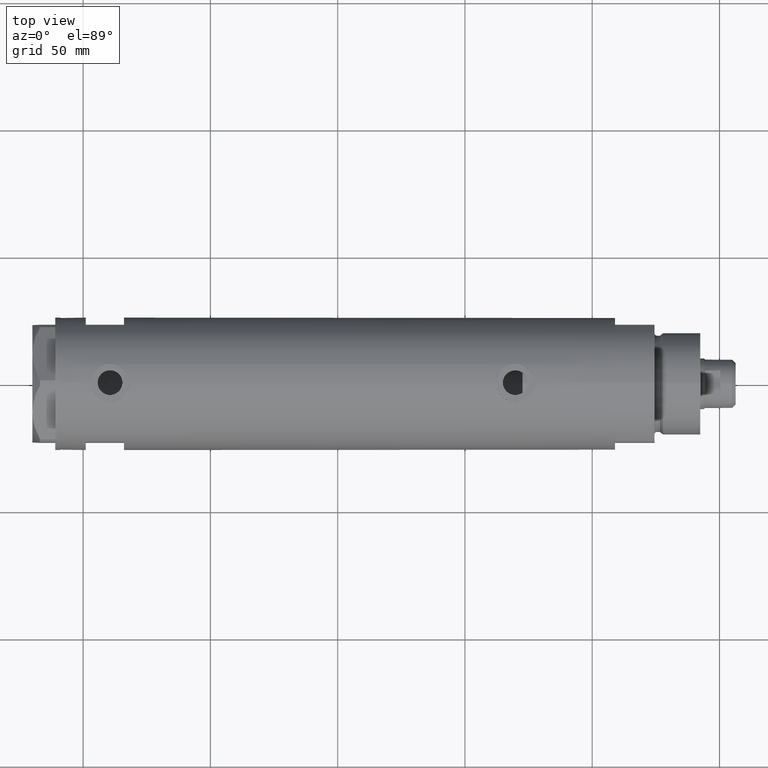
[diagram: clean part render]
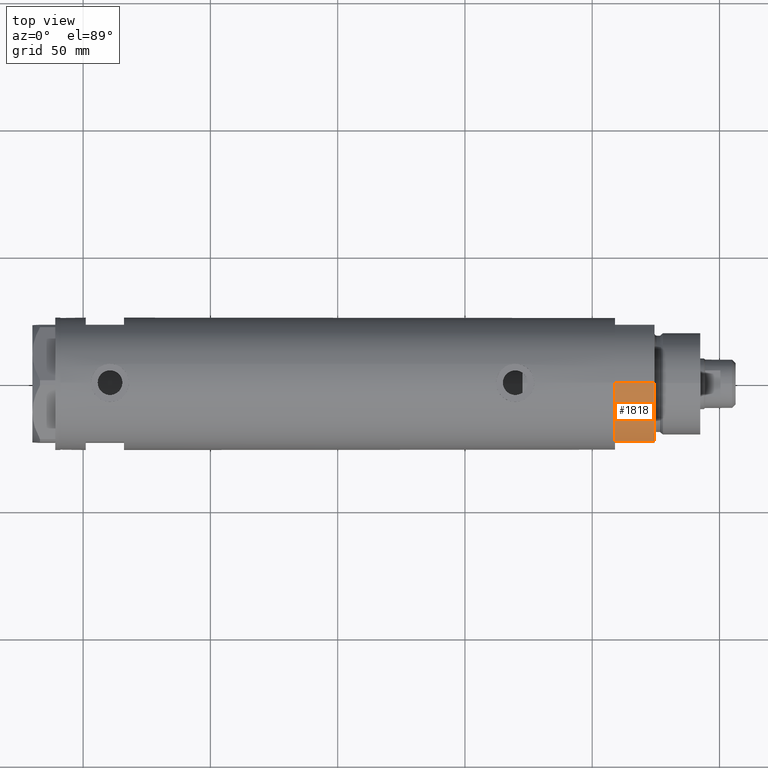
[diagram: same view with one face highlighted and labeled with its STEP entity id]
A machine part, top view. The second image highlights one B-rep face of the part: STEP entity #1818.
In plain terms, the highlighted cylindrical surface (partial cylindrical patch) has radius 26 mm, axis along (-1, -0, 0).
Its self-contained STEP definition (entity closure, byte-faithful):
#305 = CYLINDRICAL_SURFACE ( 'NONE', #1835, 26.00000000000000355 ) ;
#526 = CIRCLE ( 'NONE', #3199, 26.00000000000000355 ) ;
#611 = EDGE_CURVE ( 'NONE', #1407, #4562, #2139, .T. ) ;
#932 = DIRECTION ( 'NONE',  ( -0.000000000000000000, -0.000000000000000000, 1.000000000000000000 ) ) ;
#1039 = AXIS2_PLACEMENT_3D ( 'NONE', #2041, #2869, #3882 ) ;
#1313 = DIRECTION ( 'NONE',  ( 1.000000000000000000, 0.000000000000000000, 0.000000000000000000 ) ) ;
#1407 = VERTEX_POINT ( 'NONE', #3752 ) ;
#1434 = DIRECTION ( 'NONE',  ( -1.000000000000000000, 0.000000000000000000, 0.000000000000000000 ) ) ;
#1481 = EDGE_LOOP ( 'NONE', ( #3224, #3203, #4825, #2696 ) ) ;
#1818 = ADVANCED_FACE ( 'NONE', ( #3704 ), #305, .T. ) ;
#1835 = AXIS2_PLACEMENT_3D ( 'NONE', #3318, #4811, #1434 ) ;
#1872 = LINE ( 'NONE', #2327, #2319 ) ;
#2041 = CARTESIAN_POINT ( 'NONE',  ( 0.000000000000000000, 0.000000000000000000, 0.000000000000000000 ) ) ;
#2139 = CIRCLE ( 'NONE', #1039, 26.00000000000000355 ) ;
#2319 = VECTOR ( 'NONE', #2698, 1000.000000000000000 ) ;
#2327 = CARTESIAN_POINT ( 'NONE',  ( -26.00000000000000355, 0.000000000000000000, 15.50000000000000000 ) ) ;
#2696 = ORIENTED_EDGE ( 'NONE', *, *, #3014, .T. ) ;
#2698 = DIRECTION ( 'NONE',  ( -0.000000000000000000, -0.000000000000000000, -1.000000000000000000 ) ) ;
#2731 = CARTESIAN_POINT ( 'NONE',  ( -12.12435565298215323, -22.99999999999999645, 15.50000000000000000 ) ) ;
#2869 = DIRECTION ( 'NONE',  ( 0.000000000000000000, 0.000000000000000000, 1.000000000000000000 ) ) ;
#3014 = EDGE_CURVE ( 'NONE', #4562, #3841, #3150, .T. ) ;
#3150 = LINE ( 'NONE', #4256, #4056 ) ;
#3199 = AXIS2_PLACEMENT_3D ( 'NONE', #3218, #4678, #1313 ) ;
#3203 = ORIENTED_EDGE ( 'NONE', *, *, #3986, .T. ) ;
#3218 = CARTESIAN_POINT ( 'NONE',  ( 0.000000000000000000, 0.000000000000000000, 15.50000000000000000 ) ) ;
#3224 = ORIENTED_EDGE ( 'NONE', *, *, #3514, .F. ) ;
#3318 = CARTESIAN_POINT ( 'NONE',  ( 0.000000000000000000, 0.000000000000000000, 15.50000000000000000 ) ) ;
#3514 = EDGE_CURVE ( 'NONE', #4075, #3841, #526, .T. ) ;
#3544 = CARTESIAN_POINT ( 'NONE',  ( -12.12435565298215501, -22.99999999999999645, 0.000000000000000000 ) ) ;
#3704 = FACE_OUTER_BOUND ( 'NONE', #1481, .T. ) ;
#3752 = CARTESIAN_POINT ( 'NONE',  ( -26.00000000000000355, 0.000000000000000000, 0.000000000000000000 ) ) ;
#3841 = VERTEX_POINT ( 'NONE', #2731 ) ;
#3882 = DIRECTION ( 'NONE',  ( 1.000000000000000000, 0.000000000000000000, 0.000000000000000000 ) ) ;
#3986 = EDGE_CURVE ( 'NONE', #4075, #1407, #1872, .T. ) ;
#4056 = VECTOR ( 'NONE', #932, 1000.000000000000000 ) ;
#4075 = VERTEX_POINT ( 'NONE', #4856 ) ;
#4256 = CARTESIAN_POINT ( 'NONE',  ( -12.12435565298215145, -22.99999999999999645, 0.000000000000000000 ) ) ;
#4562 = VERTEX_POINT ( 'NONE', #3544 ) ;
#4678 = DIRECTION ( 'NONE',  ( 0.000000000000000000, 0.000000000000000000, 1.000000000000000000 ) ) ;
#4811 = DIRECTION ( 'NONE',  ( -0.000000000000000000, -0.000000000000000000, -1.000000000000000000 ) ) ;
#4825 = ORIENTED_EDGE ( 'NONE', *, *, #611, .T. ) ;
#4856 = CARTESIAN_POINT ( 'NONE',  ( -26.00000000000000355, 0.000000000000000000, 15.50000000000000000 ) ) ;